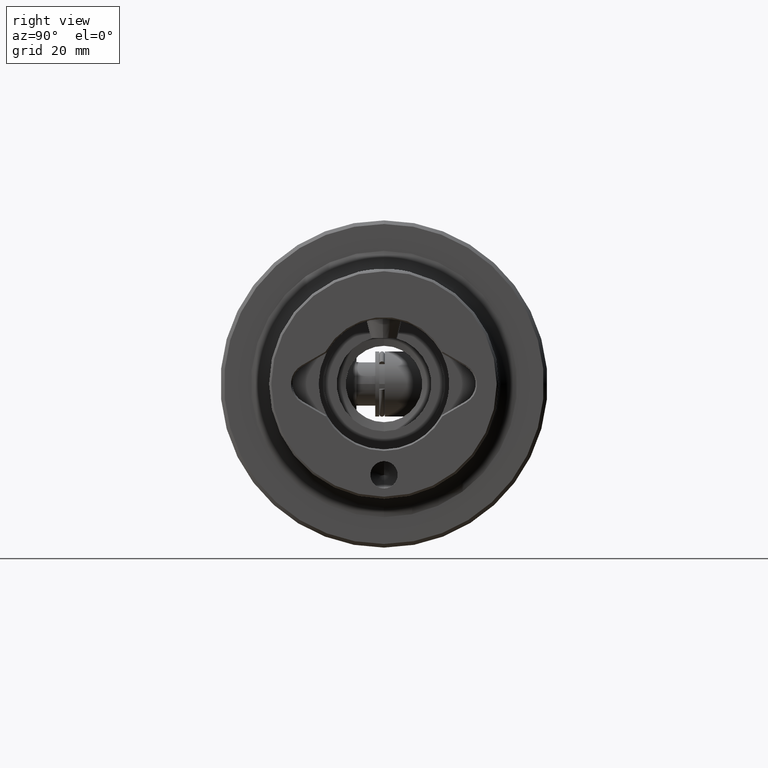
[diagram: clean part render]
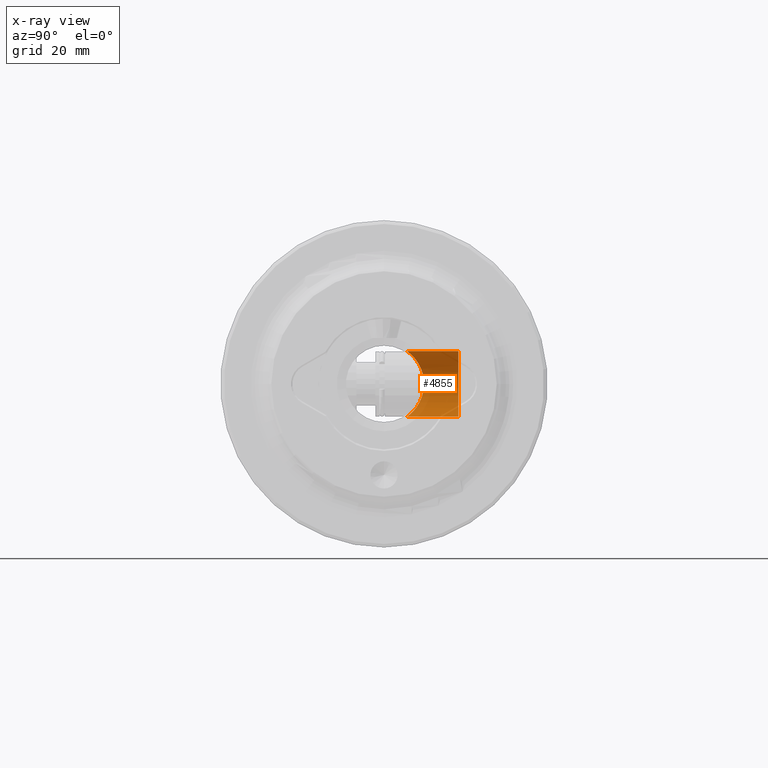
[diagram: x-ray — body ghosted, one internal face saturated and labeled with its STEP entity id]
A machine part, right view, then the same camera in x-ray: the body is ghosted and one INTERNAL B-rep face — a face not visible from any outside direction — is saturated and labeled: STEP entity #4855.
In plain terms, the highlighted cylindrical surface (edge-blend (fillet) strip) has radius 9 mm, axis along (0, 1, 0).
Its self-contained STEP definition (entity closure, byte-faithful):
#44 = CARTESIAN_POINT ( 'NONE',  ( 33.45605761540715400, 7.779283033584964500, -7.788385423207046200 ) ) ;
#63 = CARTESIAN_POINT ( 'NONE',  ( 29.13388790492684400, 10.89066197485386700, -1.577329599810563400 ) ) ;
#82 = CARTESIAN_POINT ( 'NONE',  ( 30.27061858885436500, 9.984873728867764700, 4.646559155060558100 ) ) ;
#90 = VERTEX_POINT ( 'NONE', #5203 ) ;
#108 = CARTESIAN_POINT ( 'NONE',  ( 35.56241124897076100, 6.773151438223580500, 8.668594485892480600 ) ) ;
#127 = VECTOR ( 'NONE', #4871, 1000.000000000000000 ) ;
#341 = ORIENTED_EDGE ( 'NONE', *, *, #1786, .F. ) ;
#472 = CARTESIAN_POINT ( 'NONE',  ( 32.54346331369472300, 8.351529607590668600, -7.162630017601376400 ) ) ;
#495 = CARTESIAN_POINT ( 'NONE',  ( 29.01756788672948100, 10.98561425411707200, -0.6432021774063039200 ) ) ;
#513 = CARTESIAN_POINT ( 'NONE',  ( 30.93938088378460100, 9.478236986029871900, 5.588225433440648300 ) ) ;
#528 = CARTESIAN_POINT ( 'NONE',  ( 36.45039919126642800, 6.505369226234750000, 8.870794822159666600 ) ) ;
#578 = CIRCLE ( 'NONE', #4953, 9.000000000000001800 ) ;
#703 = ORIENTED_EDGE ( 'NONE', *, *, #2188, .T. ) ;
#736 = DIRECTION ( 'NONE',  ( -0.0000000000000000000, 1.000000000000000000, -0.0000000000000000000 ) ) ;
#879 = CARTESIAN_POINT ( 'NONE',  ( 37.99999999999999300, 6.324555320336753700, -9.000000000000003600 ) ) ;
#902 = CARTESIAN_POINT ( 'NONE',  ( 31.90312402947130000, 8.783602170141925600, -6.626238705432833800 ) ) ;
#920 = CARTESIAN_POINT ( 'NONE',  ( 28.99932927823759200, 11.00054877189567100, 0.2918124169082734800 ) ) ;
#940 = CARTESIAN_POINT ( 'NONE',  ( 31.49700084325652600, 9.070227025113874600, 6.228095582515767800 ) ) ;
#962 = CARTESIAN_POINT ( 'NONE',  ( 37.36758758028117500, 6.348810466722626200, 8.983078160859575300 ) ) ;
#1081 = B_SPLINE_CURVE_WITH_KNOTS ( 'NONE', 3,
 ( #879, #3409, #4254, #1726, #4672, #2174, #5093, #2592, #44, #3002, #472, #3424, #902, #3847, #1321, #4275, #1748, #4689, #2191, #5120, #2610, #63, #3025, #495, #3438, #920, #3872, #1341, #4290, #1772, #4713, #2207, #5136, #2633, #82, #3040, #513, #3460, #940, #3886, #1358, #4311, #1789, #4731, #2230, #5151, #2650, #108, #3061, #528, #3480, #962, #3900, #1372 ),
 .UNSPECIFIED., .F., .F.,
 ( 4, 2, 2, 2, 2, 2, 2, 2, 2, 2, 2, 2, 2, 2, 2, 2, 2, 2, 2, 2, 2, 2, 2, 2, 2, 2, 4 ),
 ( 0.02997932417630954500, 0.03091598688851943500, 0.03185264960072932400, 0.03372597502514912400, 0.03559930044956892400, 0.03653596316177882400, 0.03747262587398872400, 0.03934595129840851700, 0.04028261401061841700, 0.04121927672282831700, 0.04309260214724811700, 0.04402926485945801000, 0.04496592757166791000, 0.04590259028387781000, 0.04683925299608770300, 0.04777591570829760300, 0.04871257842050749600, 0.05058590384492729600, 0.05152256655713718900, 0.05245922926934708200, 0.05339589198155697500, 0.05433255469376686900, 0.05620588011818666900, 0.05714254283039657500, 0.05807920554260648200, 0.05901586825481638900, 0.05995253096702629600 ),
 .UNSPECIFIED. ) ;
#1120 = LINE ( 'NONE', #3617, #127 ) ;
#1171 = VERTEX_POINT ( 'NONE', #1795 ) ;
#1212 = CYLINDRICAL_SURFACE ( 'NONE', #2086, 9.000000000000003600 ) ;
#1315 = VECTOR ( 'NONE', #736, 1000.000000000000000 ) ;
#1321 = CARTESIAN_POINT ( 'NONE',  ( 30.93797117138968000, 9.477738077880651700, -5.608197967950853300 ) ) ;
#1341 = CARTESIAN_POINT ( 'NONE',  ( 29.07882424051057400, 10.93558575195799600, 1.229394952563914100 ) ) ;
#1348 = VERTEX_POINT ( 'NONE', #1623 ) ;
#1358 = CARTESIAN_POINT ( 'NONE',  ( 32.10389577112383800, 8.645121770151419600, 6.805420925311392600 ) ) ;
#1372 = CARTESIAN_POINT ( 'NONE',  ( 38.00000000000014900, 6.324555320337296400, 9.000000000000078200 ) ) ;
#1481 = EDGE_CURVE ( 'NONE', #1171, #1348, #1081, .T. ) ;
#1623 = CARTESIAN_POINT ( 'NONE',  ( 38.00000000000014900, 6.324555320337296400, 9.000000000000078200 ) ) ;
#1726 = CARTESIAN_POINT ( 'NONE',  ( 36.75856573218270300, 6.437997773600920400, -8.919374952405204800 ) ) ;
#1748 = CARTESIAN_POINT ( 'NONE',  ( 30.29710993387519100, 9.966266519665987600, -4.663753832353029900 ) ) ;
#1772 = CARTESIAN_POINT ( 'NONE',  ( 29.25414893641671200, 10.79298596828219000, 2.146096540715388900 ) ) ;
#1786 = EDGE_CURVE ( 'NONE', #1348, #90, #3565, .T. ) ;
#1789 = CARTESIAN_POINT ( 'NONE',  ( 32.76260568321725200, 8.209575931333878500, 7.324464543071722600 ) ) ;
#1795 = CARTESIAN_POINT ( 'NONE',  ( 37.99999999999999300, 6.324555320336753700, -9.000000000000003600 ) ) ;
#1913 = CARTESIAN_POINT ( 'NONE',  ( 37.99999999999999300, 20.45299999999999900, 0.0000000000000000000 ) ) ;
#2086 = AXIS2_PLACEMENT_3D ( 'NONE', #2471, #5415, #2882 ) ;
#2174 = CARTESIAN_POINT ( 'NONE',  ( 35.56178348825186200, 6.754377607669281000, -8.684545351785477200 ) ) ;
#2188 = EDGE_CURVE ( 'NONE', #1171, #3219, #1120, .T. ) ;
#2191 = CARTESIAN_POINT ( 'NONE',  ( 29.87773150708434900, 10.29397154860355600, -3.888328396208885300 ) ) ;
#2207 = CARTESIAN_POINT ( 'NONE',  ( 29.51740374296812400, 10.58071000996649900, 3.022975485109900400 ) ) ;
#2230 = CARTESIAN_POINT ( 'NONE',  ( 33.94870166744495800, 7.496988139732028600, 8.056647767958629900 ) ) ;
#2343 = DIRECTION ( 'NONE',  ( 0.0000000000000000000, 0.0000000000000000000, 1.000000000000000000 ) ) ;
#2365 = FACE_OUTER_BOUND ( 'NONE', #4065, .T. ) ;
#2471 = CARTESIAN_POINT ( 'NONE',  ( 37.99999999999999300, -45.00000000000000000, 0.0000000000000000000 ) ) ;
#2592 = CARTESIAN_POINT ( 'NONE',  ( 33.94538452571078600, 7.498357647435793400, -8.055568128153829800 ) ) ;
#2610 = CARTESIAN_POINT ( 'NONE',  ( 29.32798476031976900, 10.73303995099937000, -2.485920569551098400 ) ) ;
#2633 = CARTESIAN_POINT ( 'NONE',  ( 29.98422543537168700, 10.20937874570882700, 4.136322440102850000 ) ) ;
#2650 = CARTESIAN_POINT ( 'NONE',  ( 35.00207751755013400, 6.994374932525721200, 8.491102994853582300 ) ) ;
#2843 = CARTESIAN_POINT ( 'NONE',  ( 37.99999999999999300, -45.00000000000000000, 9.000000000000003600 ) ) ;
#2882 = DIRECTION ( 'NONE',  ( 0.0000000000000000000, 0.0000000000000000000, 1.000000000000000000 ) ) ;
#2991 = ORIENTED_EDGE ( 'NONE', *, *, #3486, .T. ) ;
#3002 = CARTESIAN_POINT ( 'NONE',  ( 32.76597117201573900, 8.207467075943778700, -7.326768196248646200 ) ) ;
#3025 = CARTESIAN_POINT ( 'NONE',  ( 29.08387648782997600, 10.93146341324059300, -1.265123403570820300 ) ) ;
#3040 = CARTESIAN_POINT ( 'NONE',  ( 30.76383285977955100, 9.609927495919176700, 5.359230109251161200 ) ) ;
#3061 = CARTESIAN_POINT ( 'NONE',  ( 35.85582995770685200, 6.672033518611987900, 8.746130474273465800 ) ) ;
#3219 = VERTEX_POINT ( 'NONE', #3417 ) ;
#3409 = CARTESIAN_POINT ( 'NONE',  ( 37.68704853472900900, 6.324555320336751100, -9.000000000000003600 ) ) ;
#3417 = CARTESIAN_POINT ( 'NONE',  ( 37.99999999999999300, 20.45299999999999900, -9.000000000000001800 ) ) ;
#3424 = CARTESIAN_POINT ( 'NONE',  ( 32.11240224775286100, 8.639332235174997300, -6.812727360299546400 ) ) ;
#3438 = CARTESIAN_POINT ( 'NONE',  ( 29.00071516957388000, 10.99941486172795600, -0.3318139073565960500 ) ) ;
#3460 = CARTESIAN_POINT ( 'NONE',  ( 31.30563826794930500, 9.208643388611751100, 6.022136398295426600 ) ) ;
#3480 = CARTESIAN_POINT ( 'NONE',  ( 36.75246002574598900, 6.439239462942331300, 8.918479843861577500 ) ) ;
#3486 = EDGE_CURVE ( 'NONE', #3219, #90, #578, .T. ) ;
#3565 = LINE ( 'NONE', #2843, #1315 ) ;
#3617 = CARTESIAN_POINT ( 'NONE',  ( 37.99999999999999300, -45.00000000000000000, -9.000000000000003600 ) ) ;
#3847 = CARTESIAN_POINT ( 'NONE',  ( 31.30097602784039200, 9.208474581211637800, -6.036457715081474400 ) ) ;
#3872 = CARTESIAN_POINT ( 'NONE',  ( 29.01479483002167100, 10.98788290588001900, 0.6040504403491835400 ) ) ;
#3886 = CARTESIAN_POINT ( 'NONE',  ( 31.89613122761825900, 8.788471667187465600, 6.619740072472759500 ) ) ;
#3900 = CARTESIAN_POINT ( 'NONE',  ( 37.68253252754211500, 6.324555320336747500, 9.000000000000003600 ) ) ;
#4065 = EDGE_LOOP ( 'NONE', ( #5237, #703, #2991, #341 ) ) ;
#4254 = CARTESIAN_POINT ( 'NONE',  ( 37.37621731899003700, 6.347894227592906400, -8.983724380777522000 ) ) ;
#4275 = CARTESIAN_POINT ( 'NONE',  ( 30.45016142005553300, 9.848293230677798600, -4.907236627955195600 ) ) ;
#4290 = CARTESIAN_POINT ( 'NONE',  ( 29.12746308204172900, 10.89589586246527400, 1.540691347388892800 ) ) ;
#4311 = CARTESIAN_POINT ( 'NONE',  ( 32.53662872687994000, 8.355986537263467200, 7.157469761059693300 ) ) ;
#4672 = CARTESIAN_POINT ( 'NONE',  ( 36.45023659715001000, 6.505455086465422800, -8.870726595185532300 ) ) ;
#4689 = CARTESIAN_POINT ( 'NONE',  ( 30.01123720998651500, 10.18883133069318000, -4.155091366563170600 ) ) ;
#4713 = CARTESIAN_POINT ( 'NONE',  ( 29.33239189154940300, 10.72960462351119100, 2.442414731716953600 ) ) ;
#4731 = CARTESIAN_POINT ( 'NONE',  ( 33.45930032922788700, 7.777229871337424600, 7.790658944439938300 ) ) ;
#4848 = DIRECTION ( 'NONE',  ( -0.0000000000000000000, 1.000000000000000000, -0.0000000000000000000 ) ) ;
#4855 = ADVANCED_FACE ( 'NONE', ( #2365 ), #1212, .F. ) ;
#4871 = DIRECTION ( 'NONE',  ( -0.0000000000000000000, 1.000000000000000000, -0.0000000000000000000 ) ) ;
#4953 = AXIS2_PLACEMENT_3D ( 'NONE', #1913, #4848, #2343 ) ;
#5093 = CARTESIAN_POINT ( 'NONE',  ( 35.00587502797888100, 6.982137574739824400, -8.506897211298190000 ) ) ;
#5120 = CARTESIAN_POINT ( 'NONE',  ( 29.51573923968090100, 10.58116722006071300, -3.062465036862898900 ) ) ;
#5136 = CARTESIAN_POINT ( 'NONE',  ( 29.62486903029116900, 10.49464205608620100, 3.308720680275723900 ) ) ;
#5151 = CARTESIAN_POINT ( 'NONE',  ( 34.73243995391150900, 7.115117841734848600, 8.390691223271494100 ) ) ;
#5203 = CARTESIAN_POINT ( 'NONE',  ( 37.99999999999999300, 20.45299999999999900, 9.000000000000001800 ) ) ;
#5237 = ORIENTED_EDGE ( 'NONE', *, *, #1481, .F. ) ;
#5415 = DIRECTION ( 'NONE',  ( -0.0000000000000000000, 1.000000000000000000, -0.0000000000000000000 ) ) ;